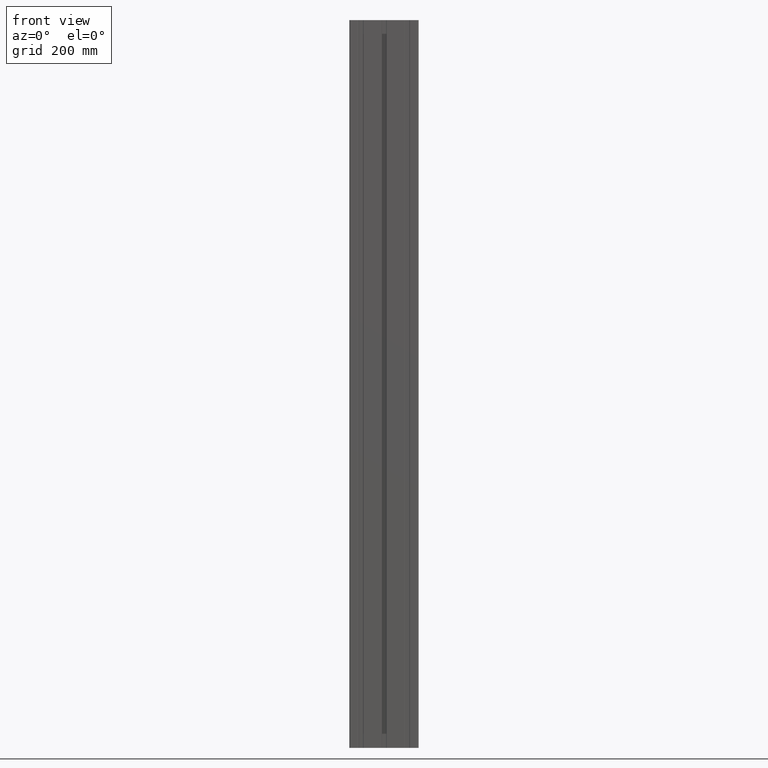
[diagram: clean part render]
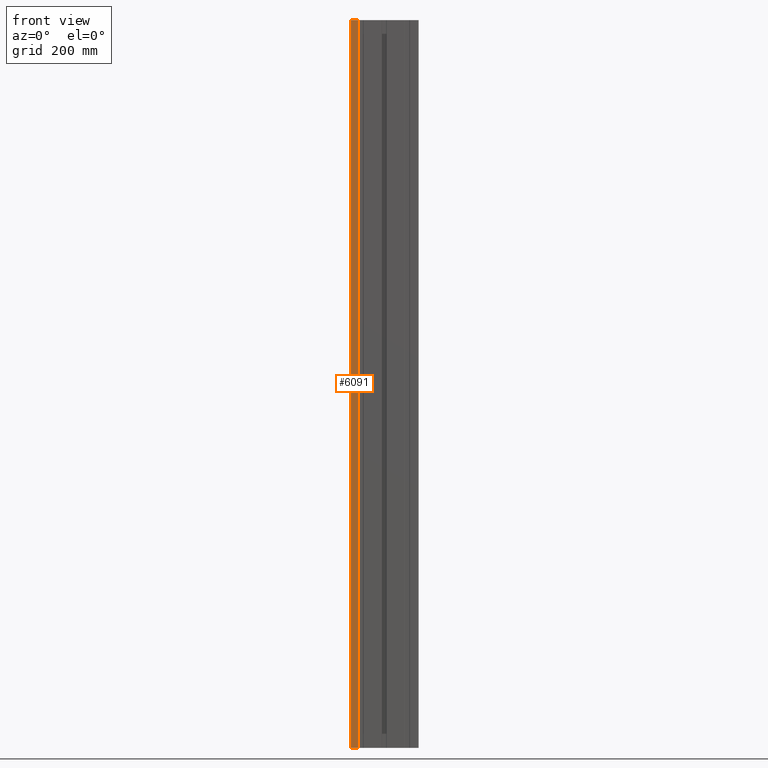
[diagram: same view with one face highlighted and labeled with its STEP entity id]
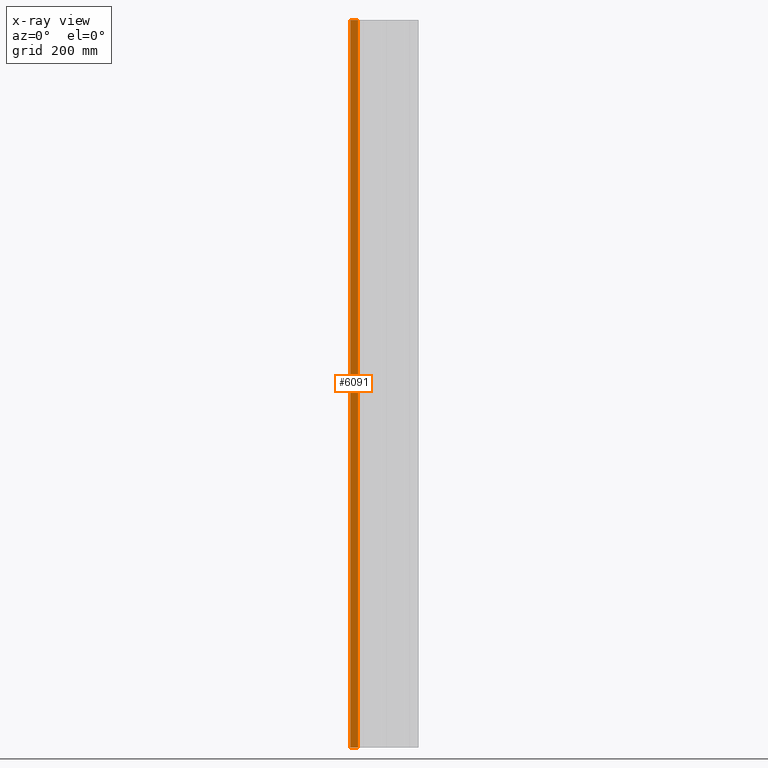
[diagram: x-ray of the same camera — body ghosted, the highlighted face saturated]
A machine part, front view. The second image highlights one B-rep face of the part: STEP entity #6091.
The next image is the same camera in x-ray: the body ghosted, the highlighted face saturated — about 0% of this face is hidden behind the body in this view.
In plain terms, the highlighted planar face has unit normal (0, -1, 0).
Its self-contained STEP definition (entity closure, byte-faithful):
#53=PLANE('',#6576);
#229=FACE_OUTER_BOUND('',#539,.T.);
#539=EDGE_LOOP('',(#4264,#4265,#4266,#4267));
#832=LINE('',#8836,#1443);
#1024=LINE('',#9503,#1635);
#1025=LINE('',#9506,#1636);
#1026=LINE('',#9507,#1637);
#1443=VECTOR('',#7029,12.9999740082);
#1635=VECTOR('',#7579,1260.);
#1636=VECTOR('',#7582,12.9999739960473);
#1637=VECTOR('',#7583,1260.);
#2358=VERTEX_POINT('',#8833);
#2359=VERTEX_POINT('',#8835);
#2655=VERTEX_POINT('',#9501);
#2656=VERTEX_POINT('',#9505);
#2957=EDGE_CURVE('',#2358,#2359,#832,.T.);
#3291=EDGE_CURVE('',#2655,#2358,#1024,.T.);
#3292=EDGE_CURVE('',#2655,#2656,#1025,.T.);
#3293=EDGE_CURVE('',#2359,#2656,#1026,.T.);
#4264=ORIENTED_EDGE('',*,*,#2957,.F.);
#4265=ORIENTED_EDGE('',*,*,#3291,.F.);
#4266=ORIENTED_EDGE('',*,*,#3292,.T.);
#4267=ORIENTED_EDGE('',*,*,#3293,.F.);
#6091=ADVANCED_FACE('',(#229),#53,.T.);
#6576=AXIS2_PLACEMENT_3D('',#9504,#7580,#7581);
#7029=DIRECTION('',(-1.,0.,0.));
#7579=DIRECTION('',(0.,0.,-1.));
#7580=DIRECTION('center_axis',(0.,-1.,0.));
#7581=DIRECTION('ref_axis',(0.,0.,-1.));
#7582=DIRECTION('',(-1.,0.,0.));
#7583=DIRECTION('',(0.,0.,1.));
#8833=CARTESIAN_POINT('',(-84.9998299999013,-19.9999600000005,0.));
#8835=CARTESIAN_POINT('',(-97.9998040081013,-19.9999600000005,0.));
#8836=CARTESIAN_POINT('',(-84.9998299999013,-19.9999600000005,0.));
#9501=CARTESIAN_POINT('',(-84.9998299999013,-19.9999600000005,1260.));
#9503=CARTESIAN_POINT('',(-84.9998299999013,-19.9999600000005,1260.));
#9504=CARTESIAN_POINT('Origin',(-97.4998049999013,-19.9999600000005,0.));
#9505=CARTESIAN_POINT('',(-97.999804006501,-19.9999600000005,1260.));
#9506=CARTESIAN_POINT('',(-84.9998299999013,-19.9999600000005,1260.));
#9507=CARTESIAN_POINT('',(-97.9998040081013,-19.9999600000005,0.));